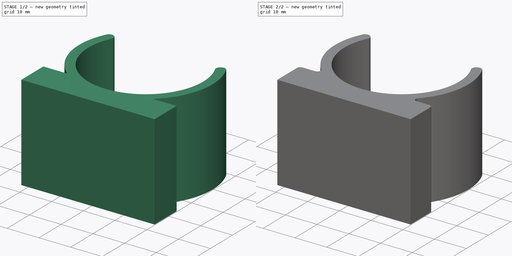
[diagram: build sequence overview — one tinted view per stage of 2, left to right]
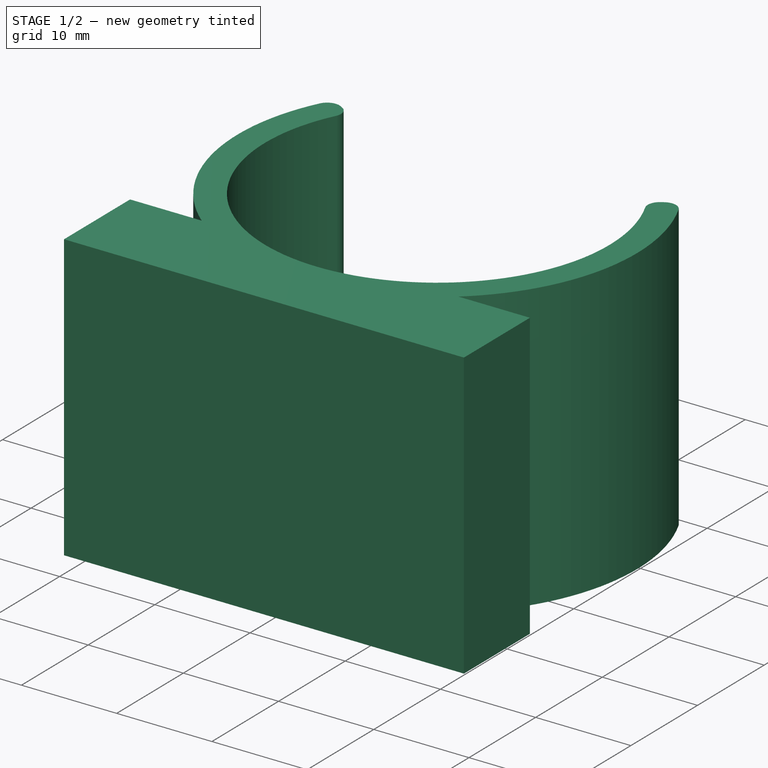
[diagram: stage 1 of 2 — iso view after this stage's code; geometry added in this stage tinted green]
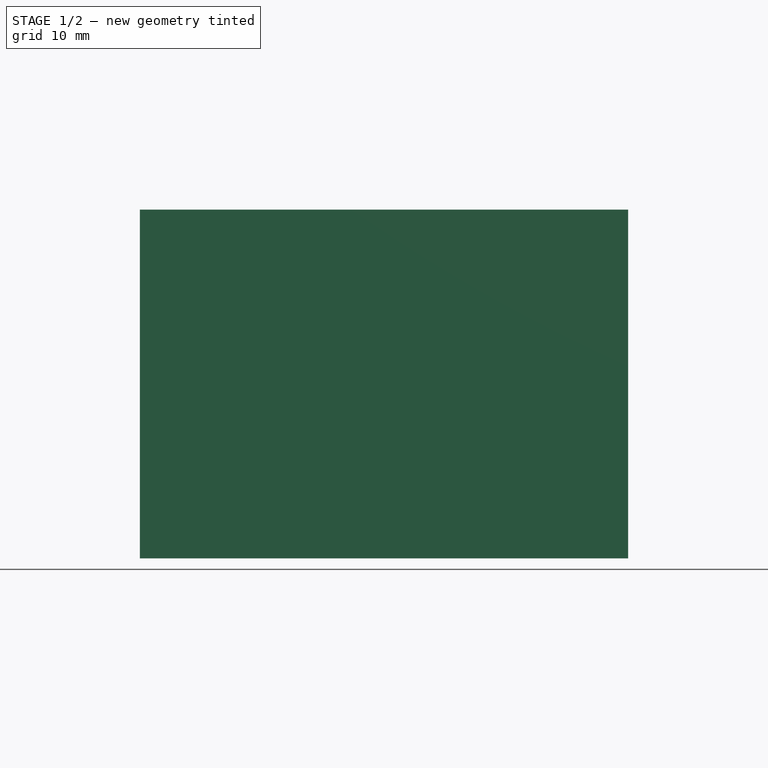
[diagram: stage 1 of 2 — front view after this stage's code; geometry added in this stage tinted green]
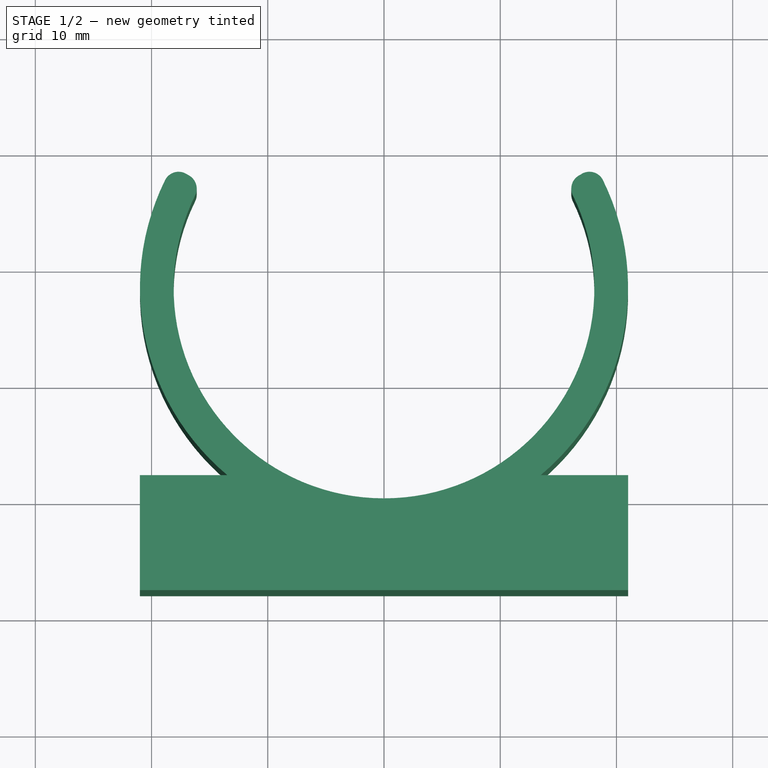
[diagram: stage 1 of 2 — top view after this stage's code; geometry added in this stage tinted green]
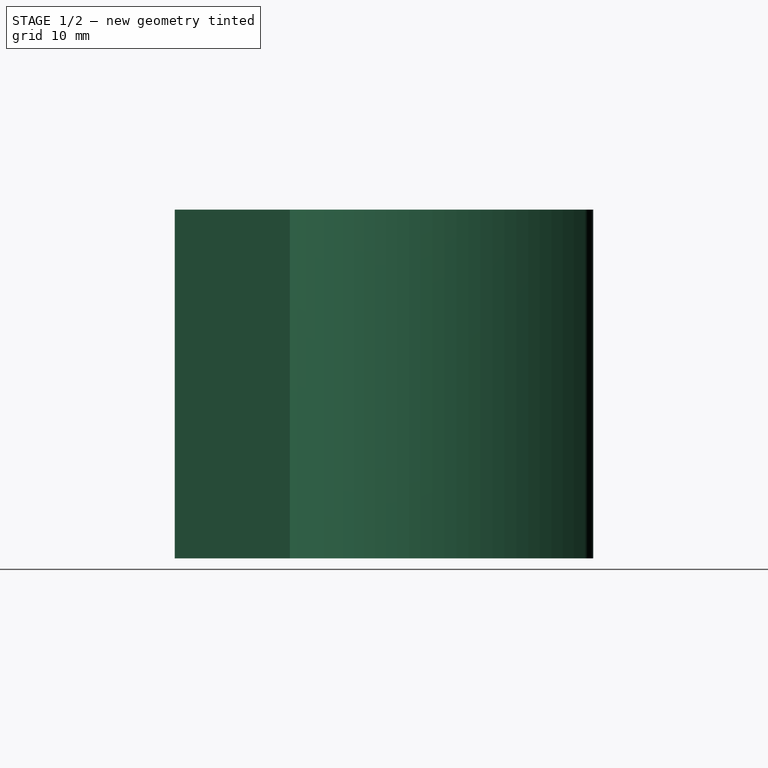
[diagram: stage 1 of 2 — right view after this stage's code; geometry added in this stage tinted green]
FCSTD DOCUMENT  (FreeCAD 0.20R29410 (Git))
Label: snap mount
License: All rights reserved
LicenseURL: http://en.wikipedia.org/wiki/All_rights_reserved
objects: PartDesign::Fillet×2, Sketcher::SketchObject×1, PartDesign::Pad×1, PartDesign::Body×1, App::Part×1
note: 8 computed .brp shape members not serialized (recipe doc carries the construction recipe); baked Part::Feature solids carry a one-line shape summary decoded from their .brp

FEATURE [Sketcher::SketchObject] Sketch001
  FullyConstrained = false
  MapMode = 5
  Support = -> [XY_Plane]
  expr: Constraints[33] = 52 / 2
  sketch-geometry (14):
    g0: ArcOfCircle CenterX=0 CenterY=18.1 CenterZ=0 NormalX=0 NormalY=0 NormalZ=1 AngleXU=0 Radius=21 StartAngle=2.61799 EndAngle=4.01523
    g1: ArcOfCircle CenterX=0 CenterY=18.1 CenterZ=0 NormalX=0 NormalY=0 NormalZ=1 AngleXU=0 Radius=18.1 StartAngle=2.61799 EndAngle=6.80678
    g2: LineSegment StartX=0 StartY=18.1 StartZ=0 EndX=-24.1058 EndY=32.0175 EndZ=0
    g3: LineSegment StartX=0 StartY=18.1 StartZ=0 EndX=24.1058 EndY=32.0175 EndZ=0
    g4: LineSegment StartX=-24.1058 StartY=32.0175 StartZ=0 EndX=24.1058 EndY=32.0175 EndZ=0
    g5: LineSegment StartX=-18.1865 StartY=28.6 StartZ=0 EndX=-15.6751 EndY=27.15 EndZ=0
    g6: LineSegment StartX=18.1865 StartY=28.6 StartZ=0 EndX=15.6751 EndY=27.15 EndZ=0
    g7: LineSegment StartX=-21 StartY=-7.9 StartZ=0 EndX=-21 EndY=2 EndZ=0
    g8: LineSegment StartX=-21 StartY=2 StartZ=0 EndX=-13.483 EndY=2 EndZ=0
    g9: LineSegment StartX=21 StartY=2 StartZ=0 EndX=21 EndY=-7.9 EndZ=0
    g10: LineSegment StartX=21 StartY=-7.9 StartZ=0 EndX=-21 EndY=-7.9 EndZ=0
    g11: GeomPoint X=0 Y=0 Z=0
    g12: LineSegment StartX=13.483 StartY=2 StartZ=0 EndX=21 EndY=2 EndZ=0
    g13: ArcOfCircle CenterX=0 CenterY=18.1 CenterZ=0 NormalX=0 NormalY=0 NormalZ=1 AngleXU=0 Radius=21 StartAngle=5.40955 EndAngle=6.80678
  constraints (39):
    c: PointOnObject(g0,g-2)
    c: Diameter(g0) = 42
    c: Coincident(g1,g0)
    c: Diameter(g1) = 36.2
    c: Coincident(g2,g0)
    c: Coincident(g3,g0)
    c: Coincident(g4,g2)
    c: Coincident(g4,g3)
    c: Horizontal(g4)
    c: Angle(g2,g-2) = 2.0944
    c: Angle(g-2,g3) = 2.0944
    c: PointOnObject(g13,g3)
    c: PointOnObject(g0,g2)
    c: PointOnObject(g1,g3)
    c: PointOnObject(g1,g2)
    c: Coincident(g5,g0)
    c: Coincident(g5,g1)
    c: Coincident(g6,g13)
    c: Coincident(g6,g1)
    c: Coincident(g7,g8)
    c: Coincident(g12,g9)
    c: Coincident(g9,g10)
    c: Coincident(g10,g7)
    c: Horizontal(g8)
    c: Horizontal(g10)
    c: Vertical(g7)
    c: Vertical(g9)
    c: Coincident(g11,g-1)
    c: DistanceX(g10,g10) = 42
    c: Equal(g0,g13)
    c: Coincident(g0,g8)
    c: Coincident(g13,g12)
    c: Coincident(g0,g13)
    c: DistanceY(g7,g0) = 26
    c: Horizontal(g12)
    c: DistanceY(g-1,g7) = 2
    c: Equal(g12,g8)
    c: Equal(g9,g7)
    c: Tangent(g1,g-1)
FEATURE [PartDesign::Pad] Pad001
  Direction = (0,0,1)
  Length = 30
  Length2 = 10
  Profile = -> Sketch001
  ReferenceAxis = -> Sketch001 [N_Axis]
  Type = 0
FEATURE [PartDesign::Fillet] Fillet
  Base = -> Pad001 [Edge2,Edge1,Edge26,Edge23]
  BaseFeature = -> Pad001
  Radius = 1.3
  SupportTransform = false
  UseAllEdges = false
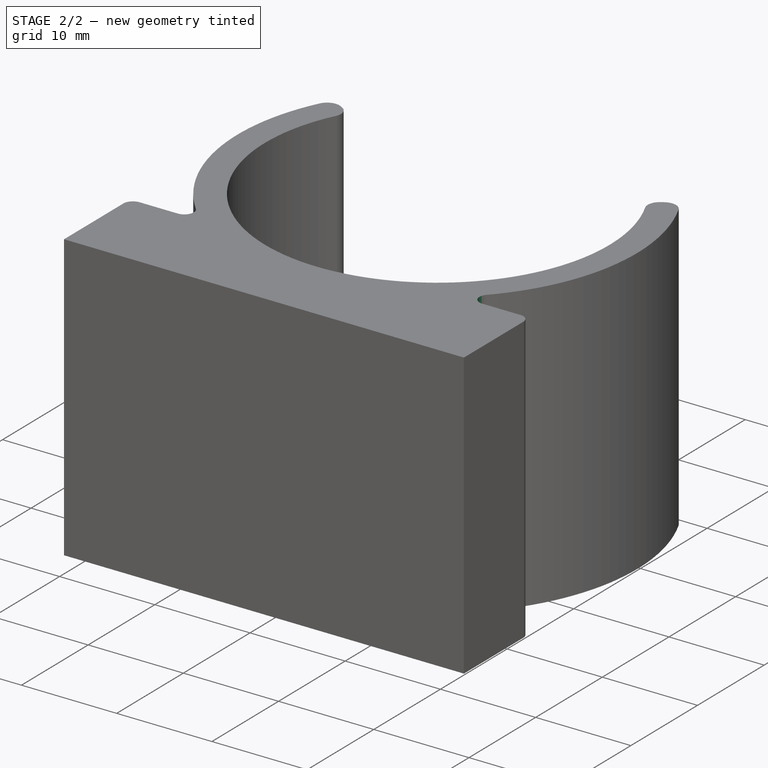
[diagram: stage 2 of 2 — iso view after this stage's code; geometry added in this stage tinted green]
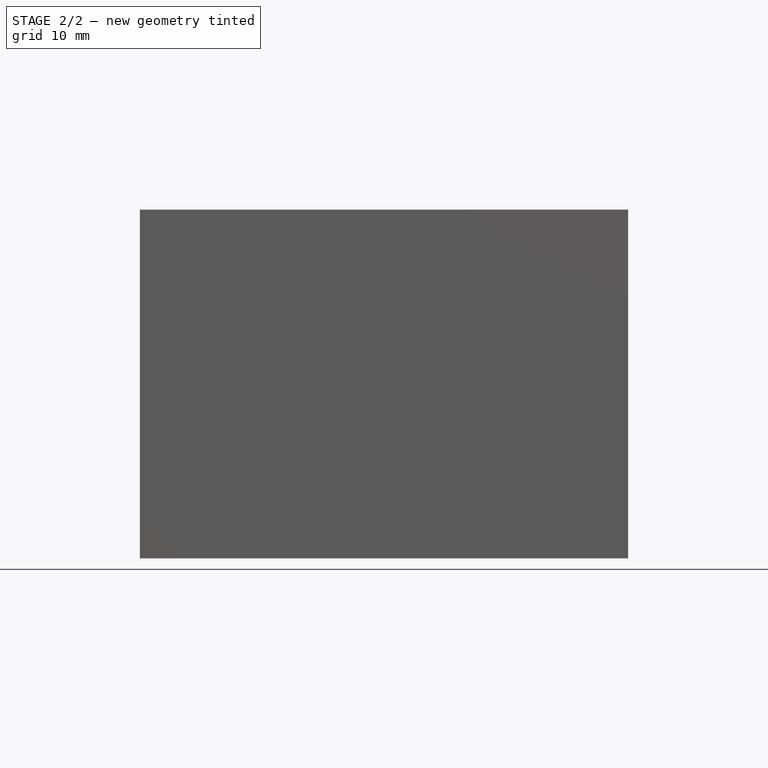
[diagram: stage 2 of 2 — front view after this stage's code; geometry added in this stage tinted green]
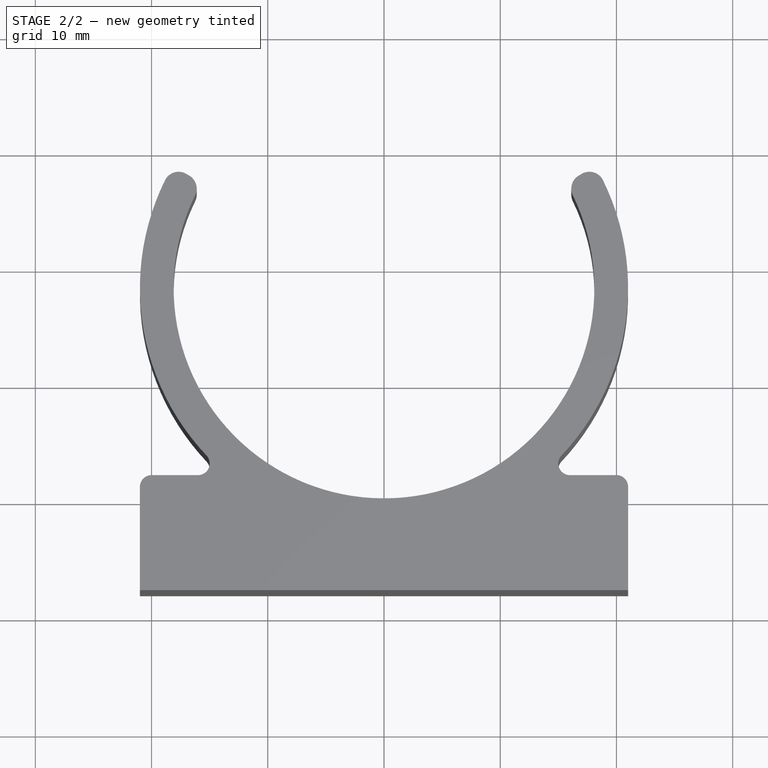
[diagram: stage 2 of 2 — top view after this stage's code; geometry added in this stage tinted green]
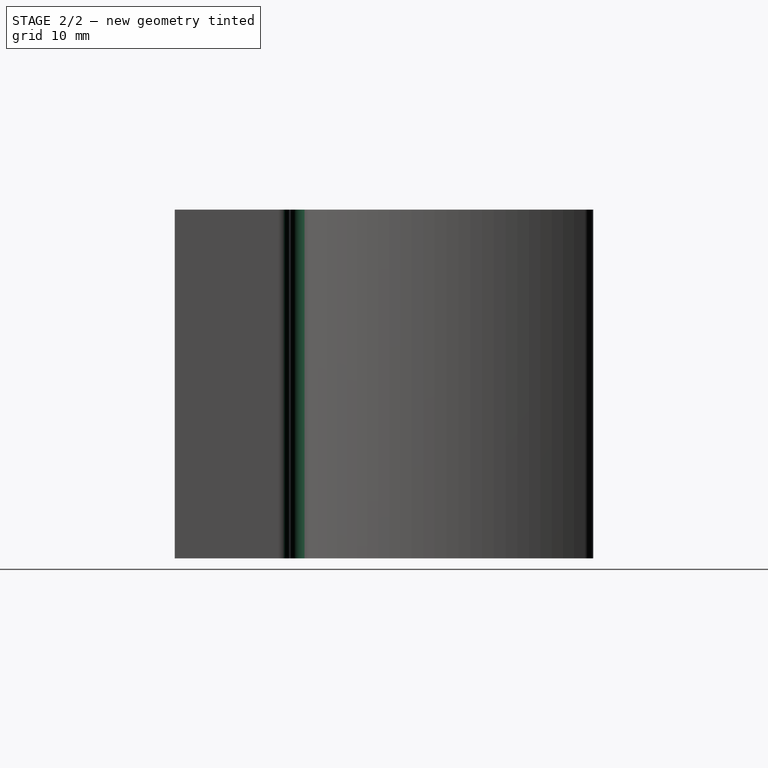
[diagram: stage 2 of 2 — right view after this stage's code; geometry added in this stage tinted green]
FEATURE [PartDesign::Fillet] Fillet001
  Base = -> Fillet [Edge33,Edge42,Edge41,Edge35]
  BaseFeature = -> Fillet
  Radius = 1
  SupportTransform = false
  UseAllEdges = false
FEATURE [PartDesign::Body] Body
  Group = -> [Sketch001,Pad001,Fillet,Fillet001]
  Origin = -> Origin001
  Tip = -> Fillet001
FEATURE [App::Part] Part
  Group = -> [Body]
  Origin = -> Origin
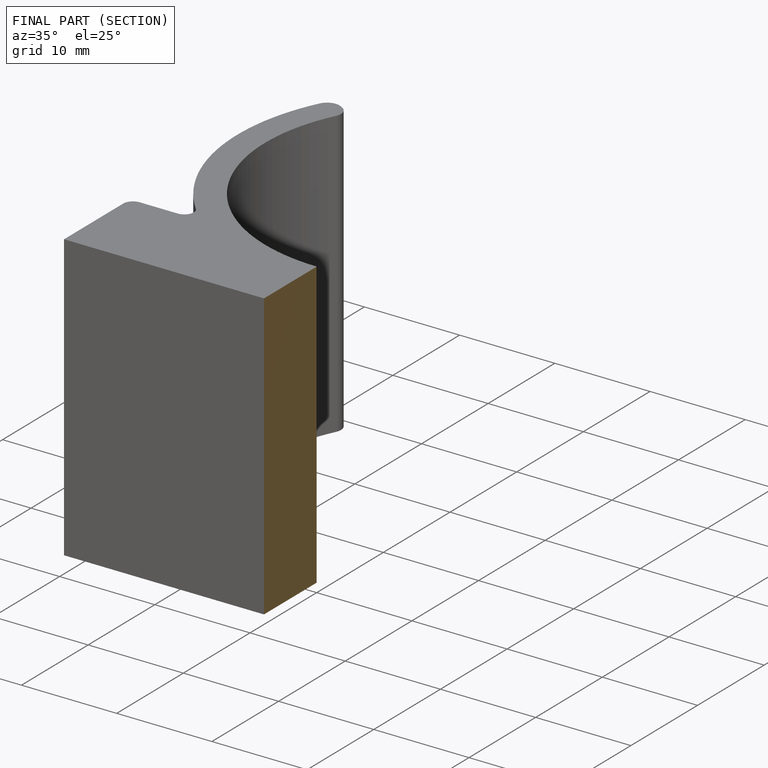
[diagram: finished part — half-section view (interior)]
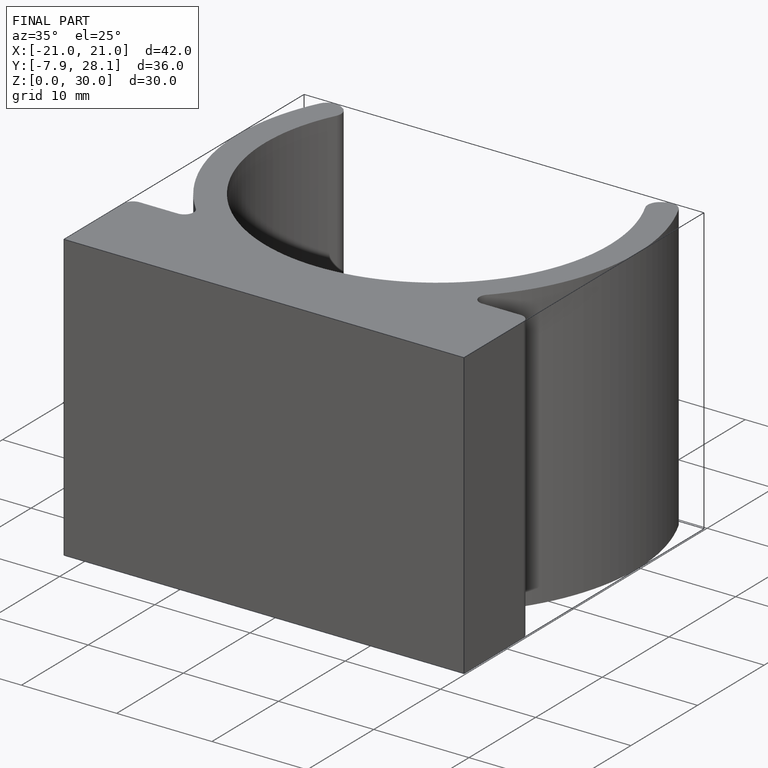
[diagram: finished part — iso view with bounding-box wireframe]
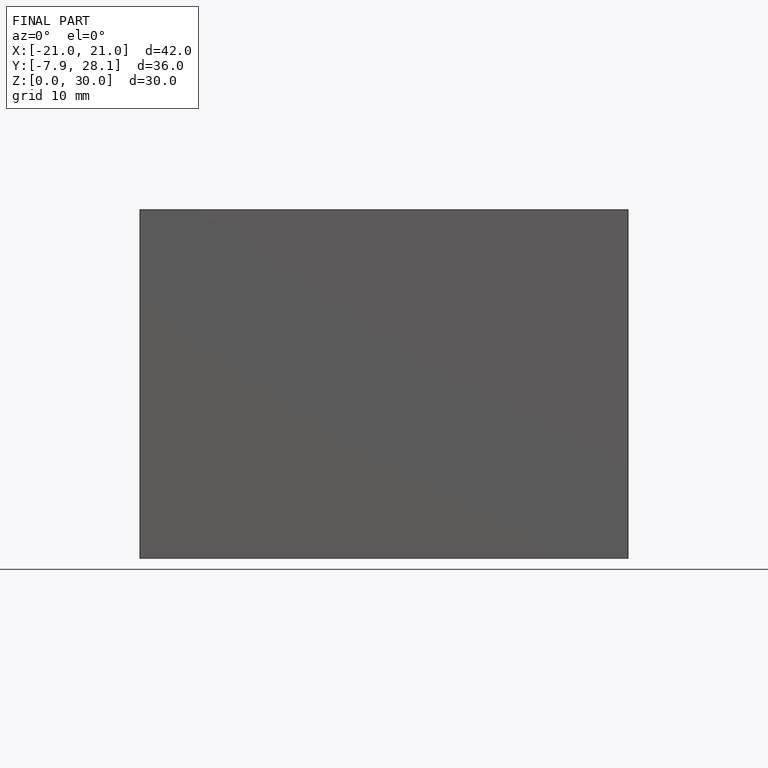
[diagram: finished part — front view with bounding-box wireframe]
